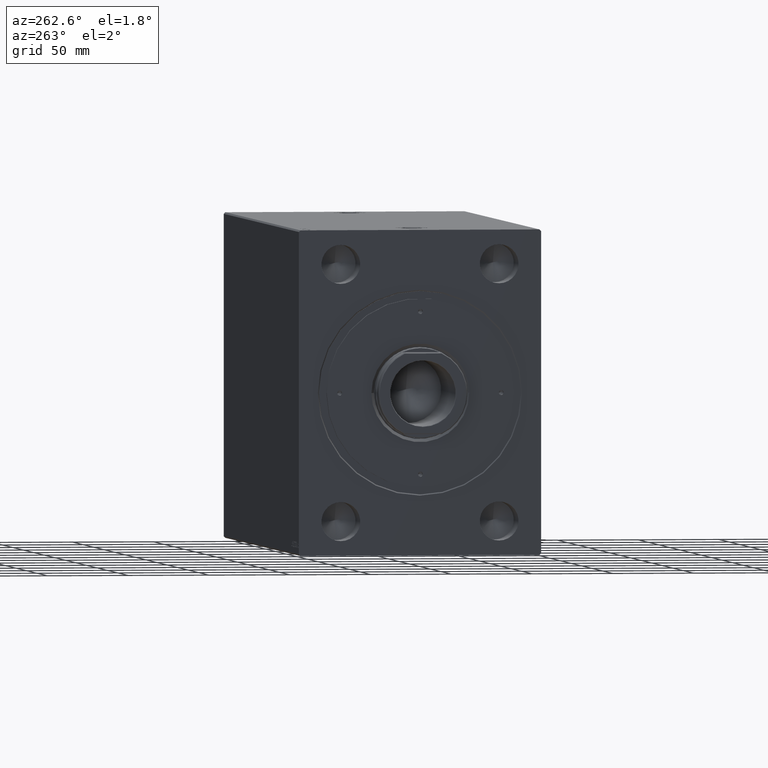
[diagram: clean part render]
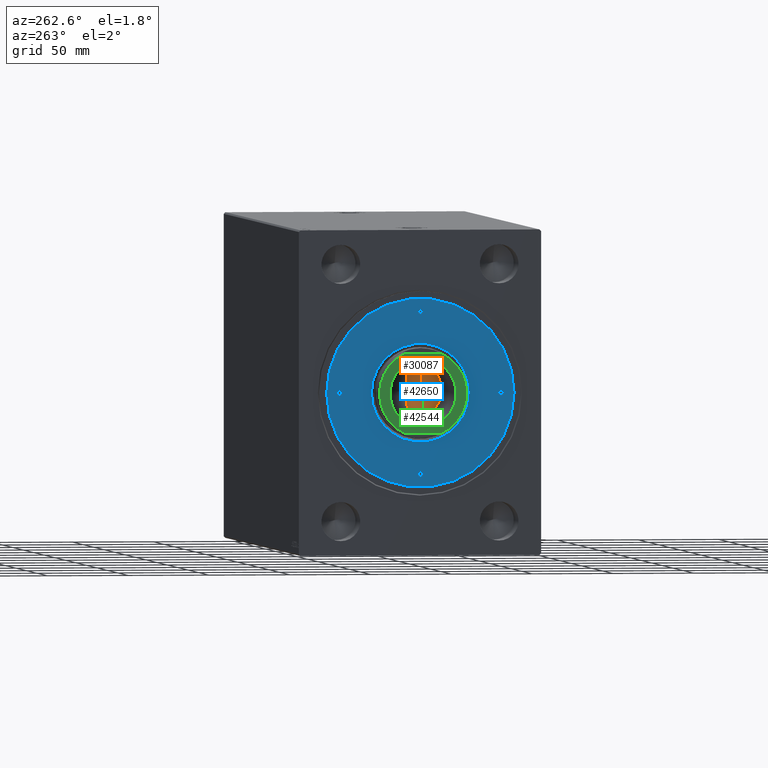
[diagram: same view with three faces highlighted in distinct colors, each labeled with its STEP entity id]
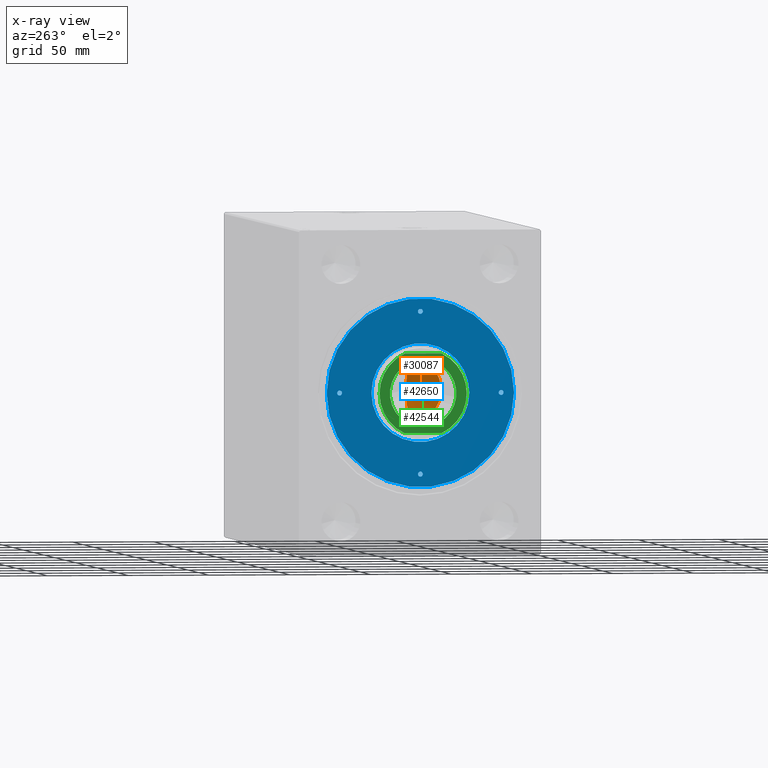
[diagram: x-ray of the same camera — body ghosted, the three highlighted faces saturated]
A machine part, auxiliary view with three faces highlighted in distinct colors.
The next image is the same camera in x-ray (body ghosted, the three faces saturated) — at least one of them is partly hidden behind the body in this view.
Their STEP definitions:

[orange] entity #30087 — the highlighted conical surface has half-angle 59 deg.
#1901 = CARTESIAN_POINT ( 'NONE',  ( -1.827619939556002415E-14, 0.000000000000000000, 257.5325724646918957 ) ) ;
#2656 = CIRCLE ( 'NONE', #22559, 20.24999999999998224 ) ;
#2822 = AXIS2_PLACEMENT_3D ( 'NONE', #42641, #22176, #15293 ) ;
#2880 = CARTESIAN_POINT ( 'NONE',  ( -20.24999999999998224, 2.479909768273388328E-15, 269.6999999999999886 ) ) ;
#8911 = DIRECTION ( 'NONE',  ( -0.8571673007021122226, 1.049727191138618572E-16, 0.5150380749100542666 ) ) ;
#10253 = VECTOR ( 'NONE', #8911, 1000.000000000000000 ) ;
#10369 = DIRECTION ( 'NONE',  ( 0.8571673007021122226, 0.000000000000000000, 0.5150380749100542666 ) ) ;
#11359 = ORIENTED_EDGE ( 'NONE', *, *, #32257, .T. ) ;
#11775 = CARTESIAN_POINT ( 'NONE',  ( 20.24999999999998224, 0.000000000000000000, 269.6999999999999886 ) ) ;
#13916 = ORIENTED_EDGE ( 'NONE', *, *, #27272, .T. ) ;
#15199 = VERTEX_POINT ( 'NONE', #11775 ) ;
#15293 = DIRECTION ( 'NONE',  ( 1.000000000000000000, 0.000000000000000000, 0.000000000000000000 ) ) ;
#16826 = CARTESIAN_POINT ( 'NONE',  ( 20.24999999999998224, 0.000000000000000000, 269.6999999999999886 ) ) ;
#19748 = EDGE_CURVE ( 'NONE', #33240, #15199, #40836, .T. ) ;
#22176 = DIRECTION ( 'NONE',  ( -0.000000000000000000, -0.000000000000000000, 1.000000000000000000 ) ) ;
#22559 = AXIS2_PLACEMENT_3D ( 'NONE', #39129, #28455, #42469 ) ;
#24726 = VERTEX_POINT ( 'NONE', #30713 ) ;
#27272 = EDGE_CURVE ( 'NONE', #24726, #15199, #2656, .T. ) ;
#28455 = DIRECTION ( 'NONE',  ( -0.000000000000000000, -0.000000000000000000, 1.000000000000000000 ) ) ;
#30087 = ADVANCED_FACE ( 'NONE', ( #35968 ), #30495, .F. ) ;
#30495 = CONICAL_SURFACE ( 'NONE', #2822, 20.24999999999998224, 1.029744258676654312 ) ;
#30713 = CARTESIAN_POINT ( 'NONE',  ( -20.24999999999998224, 2.479909768273388328E-15, 269.6999999999999886 ) ) ;
#30868 = VECTOR ( 'NONE', #10369, 1000.000000000000000 ) ;
#32257 = EDGE_CURVE ( 'NONE', #33240, #24726, #32682, .T. ) ;
#32682 = LINE ( 'NONE', #2880, #10253 ) ;
#33240 = VERTEX_POINT ( 'NONE', #1901 ) ;
#35968 = FACE_OUTER_BOUND ( 'NONE', #43291, .T. ) ;
#37431 = ORIENTED_EDGE ( 'NONE', *, *, #19748, .F. ) ;
#39129 = CARTESIAN_POINT ( 'NONE',  ( 0.000000000000000000, 0.000000000000000000, 269.6999999999999886 ) ) ;
#40836 = LINE ( 'NONE', #16826, #30868 ) ;
#42469 = DIRECTION ( 'NONE',  ( 1.000000000000000000, 0.000000000000000000, 0.000000000000000000 ) ) ;
#42641 = CARTESIAN_POINT ( 'NONE',  ( 0.000000000000000000, 0.000000000000000000, 269.6999999999999886 ) ) ;
#43291 = EDGE_LOOP ( 'NONE', ( #37431, #11359, #13916 ) ) ;

[blue] entity #42650 — the highlighted planar face has unit normal (-1, 0, 0).
#534 = VERTEX_POINT ( 'NONE', #41973 ) ;
#749 = EDGE_LOOP ( 'NONE', ( #31885, #29447 ) ) ;
#778 = CARTESIAN_POINT ( 'NONE',  ( 50.00000000000000000, 0.000000000000000000, 15.00000000000000000 ) ) ;
#863 = ORIENTED_EDGE ( 'NONE', *, *, #21698, .F. ) ;
#899 = CARTESIAN_POINT ( 'NONE',  ( 50.00000000000000000, 0.000000000000000000, 15.00000000000000000 ) ) ;
#1049 = AXIS2_PLACEMENT_3D ( 'NONE', #13095, #39136, #22227 ) ;
#2324 = CARTESIAN_POINT ( 'NONE',  ( 0.000000000000000000, 50.00000000000000000, 15.00000000000000000 ) ) ;
#3688 = CARTESIAN_POINT ( 'NONE',  ( -1.499999999999996891, -50.00000000000000000, 15.00000000000000000 ) ) ;
#3866 = AXIS2_PLACEMENT_3D ( 'NONE', #18655, #32217, #11984 ) ;
#3897 = CIRCLE ( 'NONE', #1049, 58.00000000000000000 ) ;
#4281 = DIRECTION ( 'NONE',  ( 1.000000000000000000, 0.000000000000000000, 0.000000000000000000 ) ) ;
#4351 = DIRECTION ( 'NONE',  ( 1.000000000000000000, 0.000000000000000000, 0.000000000000000000 ) ) ;
#4502 = VERTEX_POINT ( 'NONE', #29348 ) ;
#5350 = CARTESIAN_POINT ( 'NONE',  ( 0.000000000000000000, -50.00000000000000000, 15.00000000000000000 ) ) ;
#5949 = VERTEX_POINT ( 'NONE', #40094 ) ;
#6123 = CIRCLE ( 'NONE', #28121, 1.499999999999996891 ) ;
#6376 = DIRECTION ( 'NONE',  ( 0.000000000000000000, 0.000000000000000000, 1.000000000000000000 ) ) ;
#6710 = DIRECTION ( 'NONE',  ( 1.000000000000000000, 0.000000000000000000, 0.000000000000000000 ) ) ;
#6984 = ORIENTED_EDGE ( 'NONE', *, *, #23559, .F. ) ;
#7013 = DIRECTION ( 'NONE',  ( -0.000000000000000000, -0.000000000000000000, 1.000000000000000000 ) ) ;
#7030 = CARTESIAN_POINT ( 'NONE',  ( 0.000000000000000000, 0.000000000000000000, 15.00000000000000000 ) ) ;
#7115 = CARTESIAN_POINT ( 'NONE',  ( -30.29999999999997229, 3.710679801416476882E-15, 15.00000000000000000 ) ) ;
#7178 = CARTESIAN_POINT ( 'NONE',  ( -50.00000000000000000, 0.000000000000000000, 15.00000000000000000 ) ) ;
#8864 = EDGE_CURVE ( 'NONE', #31922, #26428, #10832, .T. ) ;
#8910 = ORIENTED_EDGE ( 'NONE', *, *, #20617, .F. ) ;
#8995 = ORIENTED_EDGE ( 'NONE', *, *, #26956, .F. ) ;
#9613 = CARTESIAN_POINT ( 'NONE',  ( 0.000000000000000000, 0.000000000000000000, 15.00000000000000000 ) ) ;
#9726 = CARTESIAN_POINT ( 'NONE',  ( 0.000000000000000000, 0.000000000000000000, 15.00000000000000000 ) ) ;
#10473 = DIRECTION ( 'NONE',  ( 1.000000000000000000, 0.000000000000000000, 0.000000000000000000 ) ) ;
#10800 = ORIENTED_EDGE ( 'NONE', *, *, #17791, .F. ) ;
#10832 = CIRCLE ( 'NONE', #37079, 30.29999999999996874 ) ;
#11774 = AXIS2_PLACEMENT_3D ( 'NONE', #24665, #41572, #27770 ) ;
#11904 = AXIS2_PLACEMENT_3D ( 'NONE', #7178, #18072, #4281 ) ;
#11984 = DIRECTION ( 'NONE',  ( 1.000000000000000000, 0.000000000000000000, 0.000000000000000000 ) ) ;
#12593 = EDGE_LOOP ( 'NONE', ( #13475, #18564 ) ) ;
#12627 = DIRECTION ( 'NONE',  ( -0.000000000000000000, -0.000000000000000000, -1.000000000000000000 ) ) ;
#12641 = EDGE_CURVE ( 'NONE', #26428, #31922, #28661, .T. ) ;
#12771 = CIRCLE ( 'NONE', #37621, 58.00000000000000000 ) ;
#12775 = DIRECTION ( 'NONE',  ( 1.000000000000000000, 0.000000000000000000, 0.000000000000000000 ) ) ;
#13095 = CARTESIAN_POINT ( 'NONE',  ( 0.000000000000000000, 0.000000000000000000, 15.00000000000000000 ) ) ;
#13475 = ORIENTED_EDGE ( 'NONE', *, *, #8864, .T. ) ;
#14603 = VERTEX_POINT ( 'NONE', #15806 ) ;
#14806 = VERTEX_POINT ( 'NONE', #32209 ) ;
#15527 = CARTESIAN_POINT ( 'NONE',  ( 58.00000000000000000, 7.102951435054648059E-15, 15.00000000000000000 ) ) ;
#15806 = CARTESIAN_POINT ( 'NONE',  ( -51.50000000000000000, 1.836970198721022785E-16, 15.00000000000000000 ) ) ;
#16027 = ORIENTED_EDGE ( 'NONE', *, *, #30583, .T. ) ;
#16765 = EDGE_LOOP ( 'NONE', ( #39778, #16027 ) ) ;
#16854 = EDGE_CURVE ( 'NONE', #38152, #534, #36497, .T. ) ;
#17362 = CIRCLE ( 'NONE', #3866, 1.499999999999994449 ) ;
#17791 = EDGE_CURVE ( 'NONE', #14806, #14603, #17362, .T. ) ;
#18070 = CARTESIAN_POINT ( 'NONE',  ( 48.50000000000000711, 1.836970198721022785E-16, 15.00000000000000000 ) ) ;
#18072 = DIRECTION ( 'NONE',  ( -0.000000000000000000, -0.000000000000000000, 1.000000000000000000 ) ) ;
#18564 = ORIENTED_EDGE ( 'NONE', *, *, #12641, .T. ) ;
#18655 = CARTESIAN_POINT ( 'NONE',  ( -50.00000000000000000, 0.000000000000000000, 15.00000000000000000 ) ) ;
#19078 = CARTESIAN_POINT ( 'NONE',  ( 0.000000000000000000, 0.000000000000000000, 15.00000000000000000 ) ) ;
#19316 = AXIS2_PLACEMENT_3D ( 'NONE', #9726, #6376, #19723 ) ;
#19363 = EDGE_CURVE ( 'NONE', #34149, #43832, #3897, .T. ) ;
#19541 = CIRCLE ( 'NONE', #20236, 1.499999999999996891 ) ;
#19582 = CIRCLE ( 'NONE', #11774, 1.499999999999996891 ) ;
#19723 = DIRECTION ( 'NONE',  ( 1.000000000000000000, 0.000000000000000000, -0.000000000000000000 ) ) ;
#20236 = AXIS2_PLACEMENT_3D ( 'NONE', #5350, #31600, #22024 ) ;
#20617 = EDGE_CURVE ( 'NONE', #23332, #5949, #19541, .T. ) ;
#21698 = EDGE_CURVE ( 'NONE', #4502, #26512, #19582, .T. ) ;
#22024 = DIRECTION ( 'NONE',  ( 1.000000000000000000, 0.000000000000000000, 0.000000000000000000 ) ) ;
#22227 = DIRECTION ( 'NONE',  ( 1.000000000000000000, 0.000000000000000000, 0.000000000000000000 ) ) ;
#23332 = VERTEX_POINT ( 'NONE', #3688 ) ;
#23341 = DIRECTION ( 'NONE',  ( -0.000000000000000000, -0.000000000000000000, 1.000000000000000000 ) ) ;
#23557 = CARTESIAN_POINT ( 'NONE',  ( 0.000000000000000000, -50.00000000000000000, 15.00000000000000000 ) ) ;
#23559 = EDGE_CURVE ( 'NONE', #26512, #4502, #6123, .T. ) ;
#23913 = DIRECTION ( 'NONE',  ( 1.000000000000000000, 0.000000000000000000, 0.000000000000000000 ) ) ;
#23930 = DIRECTION ( 'NONE',  ( 0.000000000000000000, 0.000000000000000000, 1.000000000000000000 ) ) ;
#24665 = CARTESIAN_POINT ( 'NONE',  ( 0.000000000000000000, 50.00000000000000000, 15.00000000000000000 ) ) ;
#24885 = AXIS2_PLACEMENT_3D ( 'NONE', #778, #7013, #23913 ) ;
#25245 = AXIS2_PLACEMENT_3D ( 'NONE', #899, #34925, #10473 ) ;
#25551 = ORIENTED_EDGE ( 'NONE', *, *, #34683, .F. ) ;
#25739 = FACE_BOUND ( 'NONE', #33659, .T. ) ;
#26388 = FACE_OUTER_BOUND ( 'NONE', #16765, .T. ) ;
#26428 = VERTEX_POINT ( 'NONE', #7115 ) ;
#26512 = VERTEX_POINT ( 'NONE', #28012 ) ;
#26615 = PLANE ( 'NONE',  #19316 ) ;
#26956 = EDGE_CURVE ( 'NONE', #14603, #14806, #29631, .T. ) ;
#27770 = DIRECTION ( 'NONE',  ( 1.000000000000000000, 0.000000000000000000, 0.000000000000000000 ) ) ;
#28012 = CARTESIAN_POINT ( 'NONE',  ( -1.499999999999996891, 50.00000000000000000, 15.00000000000000000 ) ) ;
#28121 = AXIS2_PLACEMENT_3D ( 'NONE', #2324, #33231, #12775 ) ;
#28661 = CIRCLE ( 'NONE', #39301, 30.29999999999996874 ) ;
#29348 = CARTESIAN_POINT ( 'NONE',  ( 1.499999999999996891, 50.00000000000000000, 15.00000000000000000 ) ) ;
#29447 = ORIENTED_EDGE ( 'NONE', *, *, #16854, .F. ) ;
#29631 = CIRCLE ( 'NONE', #11904, 1.499999999999994449 ) ;
#30583 = EDGE_CURVE ( 'NONE', #43832, #34149, #12771, .T. ) ;
#30765 = EDGE_LOOP ( 'NONE', ( #10800, #8995 ) ) ;
#31600 = DIRECTION ( 'NONE',  ( -0.000000000000000000, -0.000000000000000000, 1.000000000000000000 ) ) ;
#31885 = ORIENTED_EDGE ( 'NONE', *, *, #37701, .F. ) ;
#31922 = VERTEX_POINT ( 'NONE', #33406 ) ;
#32209 = CARTESIAN_POINT ( 'NONE',  ( -48.50000000000000711, 0.000000000000000000, 15.00000000000000000 ) ) ;
#32217 = DIRECTION ( 'NONE',  ( -0.000000000000000000, -0.000000000000000000, 1.000000000000000000 ) ) ;
#33231 = DIRECTION ( 'NONE',  ( -0.000000000000000000, -0.000000000000000000, 1.000000000000000000 ) ) ;
#33292 = FACE_BOUND ( 'NONE', #12593, .T. ) ;
#33297 = DIRECTION ( 'NONE',  ( 1.000000000000000000, 0.000000000000000000, 0.000000000000000000 ) ) ;
#33406 = CARTESIAN_POINT ( 'NONE',  ( 30.29999999999997229, 0.000000000000000000, 15.00000000000000000 ) ) ;
#33657 = AXIS2_PLACEMENT_3D ( 'NONE', #23557, #23341, #37125 ) ;
#33659 = EDGE_LOOP ( 'NONE', ( #863, #6984 ) ) ;
#34149 = VERTEX_POINT ( 'NONE', #38117 ) ;
#34683 = EDGE_CURVE ( 'NONE', #5949, #23332, #40030, .T. ) ;
#34925 = DIRECTION ( 'NONE',  ( -0.000000000000000000, -0.000000000000000000, 1.000000000000000000 ) ) ;
#36497 = CIRCLE ( 'NONE', #25245, 1.499999999999994449 ) ;
#36947 = CIRCLE ( 'NONE', #24885, 1.499999999999994449 ) ;
#37079 = AXIS2_PLACEMENT_3D ( 'NONE', #19078, #12627, #33297 ) ;
#37125 = DIRECTION ( 'NONE',  ( 1.000000000000000000, 0.000000000000000000, 0.000000000000000000 ) ) ;
#37172 = DIRECTION ( 'NONE',  ( -0.000000000000000000, -0.000000000000000000, -1.000000000000000000 ) ) ;
#37621 = AXIS2_PLACEMENT_3D ( 'NONE', #7030, #23930, #4351 ) ;
#37701 = EDGE_CURVE ( 'NONE', #534, #38152, #36947, .T. ) ;
#38117 = CARTESIAN_POINT ( 'NONE',  ( -58.00000000000000000, 0.000000000000000000, 15.00000000000000000 ) ) ;
#38152 = VERTEX_POINT ( 'NONE', #18070 ) ;
#39136 = DIRECTION ( 'NONE',  ( 0.000000000000000000, 0.000000000000000000, 1.000000000000000000 ) ) ;
#39301 = AXIS2_PLACEMENT_3D ( 'NONE', #9613, #37172, #6710 ) ;
#39314 = FACE_BOUND ( 'NONE', #749, .T. ) ;
#39778 = ORIENTED_EDGE ( 'NONE', *, *, #19363, .T. ) ;
#40030 = CIRCLE ( 'NONE', #33657, 1.499999999999996891 ) ;
#40094 = CARTESIAN_POINT ( 'NONE',  ( 1.499999999999996891, -50.00000000000000000, 15.00000000000000000 ) ) ;
#41572 = DIRECTION ( 'NONE',  ( -0.000000000000000000, -0.000000000000000000, 1.000000000000000000 ) ) ;
#41973 = CARTESIAN_POINT ( 'NONE',  ( 51.50000000000000000, 0.000000000000000000, 15.00000000000000000 ) ) ;
#42650 = ADVANCED_FACE ( 'NONE', ( #42651, #25739, #39314, #42878, #33292, #26388 ), #26615, .T. ) ;
#42651 = FACE_BOUND ( 'NONE', #30765, .T. ) ;
#42878 = FACE_BOUND ( 'NONE', #43254, .T. ) ;
#43254 = EDGE_LOOP ( 'NONE', ( #25551, #8910 ) ) ;
#43832 = VERTEX_POINT ( 'NONE', #15527 ) ;

[green] entity #42544 — the highlighted planar face has unit normal (-1, 0, 0).
#477 = DIRECTION ( 'NONE',  ( 1.000000000000000000, 0.000000000000000000, -0.000000000000000000 ) ) ;
#1312 = EDGE_CURVE ( 'NONE', #3054, #2047, #34865, .T. ) ;
#2047 = VERTEX_POINT ( 'NONE', #25188 ) ;
#3054 = VERTEX_POINT ( 'NONE', #36732 ) ;
#3810 = FACE_BOUND ( 'NONE', #17541, .T. ) ;
#4620 = ORIENTED_EDGE ( 'NONE', *, *, #35555, .T. ) ;
#7224 = EDGE_LOOP ( 'NONE', ( #38047, #34441, #32607, #28046 ) ) ;
#8171 = AXIS2_PLACEMENT_3D ( 'NONE', #38236, #10886, #21327 ) ;
#8303 = LINE ( 'NONE', #21423, #40029 ) ;
#10886 = DIRECTION ( 'NONE',  ( -0.000000000000000000, -0.000000000000000000, -1.000000000000000000 ) ) ;
#12197 = CARTESIAN_POINT ( 'NONE',  ( 0.000000000000000000, 0.000000000000000000, 339.6999999999999886 ) ) ;
#12369 = EDGE_CURVE ( 'NONE', #30791, #32035, #8303, .T. ) ;
#13579 = CARTESIAN_POINT ( 'NONE',  ( 20.55000000000001137, 0.000000000000000000, 339.6999999999999886 ) ) ;
#13603 = PLANE ( 'NONE',  #22866 ) ;
#14592 = EDGE_CURVE ( 'NONE', #32035, #3054, #37238, .T. ) ;
#15530 = DIRECTION ( 'NONE',  ( 1.000000000000000000, 0.000000000000000000, 0.000000000000000000 ) ) ;
#15875 = CIRCLE ( 'NONE', #16604, 27.00000000000002487 ) ;
#16030 = DIRECTION ( 'NONE',  ( 1.000000000000000000, 0.000000000000000000, 0.000000000000000000 ) ) ;
#16604 = AXIS2_PLACEMENT_3D ( 'NONE', #12197, #18646, #15530 ) ;
#17541 = EDGE_LOOP ( 'NONE', ( #42152, #4620 ) ) ;
#18064 = AXIS2_PLACEMENT_3D ( 'NONE', #32695, #42721, #16030 ) ;
#18646 = DIRECTION ( 'NONE',  ( 0.000000000000000000, 0.000000000000000000, 1.000000000000000000 ) ) ;
#21327 = DIRECTION ( 'NONE',  ( 1.000000000000000000, 0.000000000000000000, 0.000000000000000000 ) ) ;
#21423 = CARTESIAN_POINT ( 'NONE',  ( -24.50000000000005684, -11.45643923738952275, 339.6999999999999886 ) ) ;
#21514 = CARTESIAN_POINT ( 'NONE',  ( -20.55000000000001137, 2.516649172247812343E-15, 339.6999999999999886 ) ) ;
#22866 = AXIS2_PLACEMENT_3D ( 'NONE', #27150, #23606, #477 ) ;
#23606 = DIRECTION ( 'NONE',  ( 0.000000000000000000, 0.000000000000000000, 1.000000000000000000 ) ) ;
#25188 = CARTESIAN_POINT ( 'NONE',  ( 24.50000000000006040, 11.34680571791014714, 339.6999999999999886 ) ) ;
#25226 = CIRCLE ( 'NONE', #8171, 20.55000000000001137 ) ;
#26550 = CARTESIAN_POINT ( 'NONE',  ( -24.50000000000005684, 11.34680571791014714, 339.6999999999999886 ) ) ;
#27150 = CARTESIAN_POINT ( 'NONE',  ( 0.000000000000000000, 0.000000000000000000, 339.6999999999999886 ) ) ;
#27959 = AXIS2_PLACEMENT_3D ( 'NONE', #37786, #41575, #40908 ) ;
#28046 = ORIENTED_EDGE ( 'NONE', *, *, #35665, .T. ) ;
#28047 = CARTESIAN_POINT ( 'NONE',  ( -24.50000000000005684, -11.34680571791014714, 339.6999999999999886 ) ) ;
#29096 = VECTOR ( 'NONE', #37983, 1000.000000000000000 ) ;
#29395 = VERTEX_POINT ( 'NONE', #21514 ) ;
#30791 = VERTEX_POINT ( 'NONE', #26550 ) ;
#31371 = FACE_OUTER_BOUND ( 'NONE', #7224, .T. ) ;
#31518 = CIRCLE ( 'NONE', #27959, 20.55000000000001137 ) ;
#32035 = VERTEX_POINT ( 'NONE', #28047 ) ;
#32607 = ORIENTED_EDGE ( 'NONE', *, *, #1312, .T. ) ;
#32695 = CARTESIAN_POINT ( 'NONE',  ( 0.000000000000000000, 0.000000000000000000, 339.6999999999999886 ) ) ;
#34429 = CARTESIAN_POINT ( 'NONE',  ( 24.50000000000005684, 11.45643923738952275, 339.6999999999999886 ) ) ;
#34441 = ORIENTED_EDGE ( 'NONE', *, *, #14592, .T. ) ;
#34865 = LINE ( 'NONE', #34429, #29096 ) ;
#35555 = EDGE_CURVE ( 'NONE', #29395, #38419, #31518, .T. ) ;
#35665 = EDGE_CURVE ( 'NONE', #2047, #30791, #15875, .T. ) ;
#36078 = EDGE_CURVE ( 'NONE', #38419, #29395, #25226, .T. ) ;
#36732 = CARTESIAN_POINT ( 'NONE',  ( 24.50000000000005684, -11.34680571791014714, 339.6999999999999886 ) ) ;
#37238 = CIRCLE ( 'NONE', #18064, 27.00000000000002487 ) ;
#37786 = CARTESIAN_POINT ( 'NONE',  ( 0.000000000000000000, 0.000000000000000000, 339.6999999999999886 ) ) ;
#37983 = DIRECTION ( 'NONE',  ( 0.000000000000000000, 1.000000000000000000, 0.000000000000000000 ) ) ;
#38047 = ORIENTED_EDGE ( 'NONE', *, *, #12369, .T. ) ;
#38236 = CARTESIAN_POINT ( 'NONE',  ( 0.000000000000000000, 0.000000000000000000, 339.6999999999999886 ) ) ;
#38419 = VERTEX_POINT ( 'NONE', #13579 ) ;
#40029 = VECTOR ( 'NONE', #41667, 1000.000000000000000 ) ;
#40908 = DIRECTION ( 'NONE',  ( 1.000000000000000000, 0.000000000000000000, 0.000000000000000000 ) ) ;
#41575 = DIRECTION ( 'NONE',  ( -0.000000000000000000, -0.000000000000000000, -1.000000000000000000 ) ) ;
#41667 = DIRECTION ( 'NONE',  ( 0.000000000000000000, -1.000000000000000000, 0.000000000000000000 ) ) ;
#42152 = ORIENTED_EDGE ( 'NONE', *, *, #36078, .T. ) ;
#42544 = ADVANCED_FACE ( 'NONE', ( #31371, #3810 ), #13603, .T. ) ;
#42721 = DIRECTION ( 'NONE',  ( 0.000000000000000000, 0.000000000000000000, 1.000000000000000000 ) ) ;